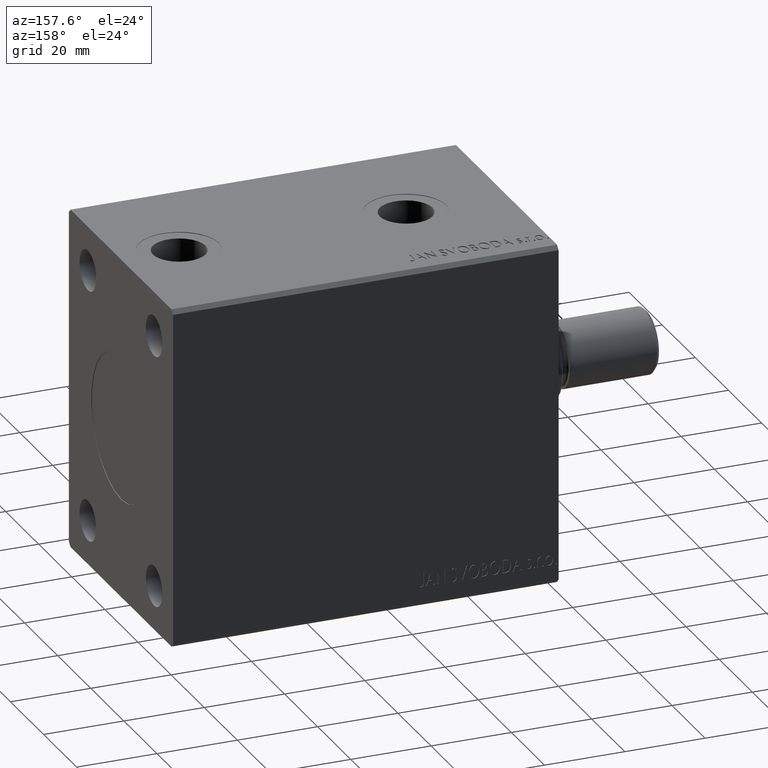
[diagram: clean part render]
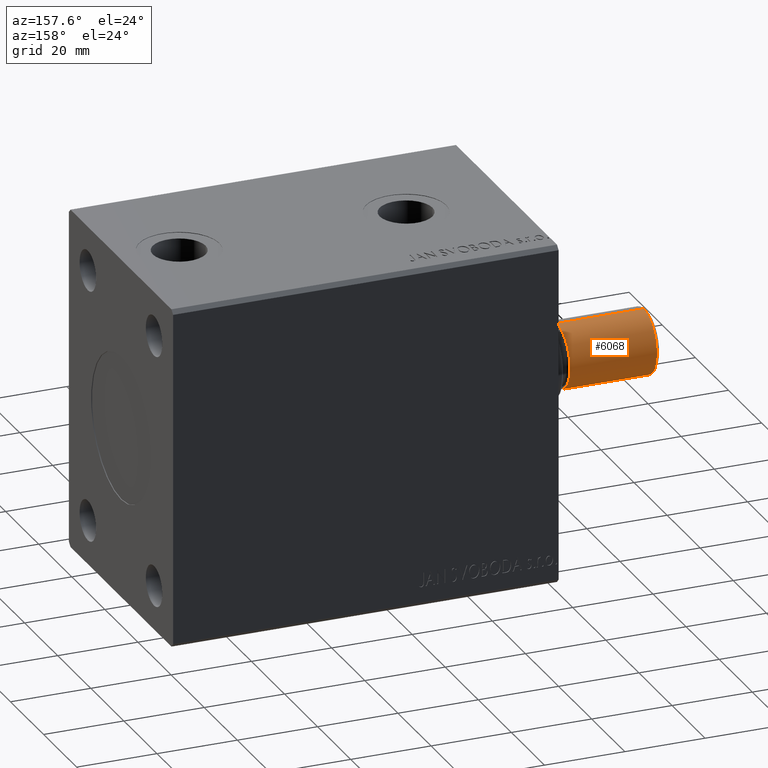
[diagram: same view with one face highlighted and labeled with its STEP entity id]
A machine part, auxiliary view. The second image highlights one B-rep face of the part: STEP entity #6068.
In plain terms, the highlighted cylindrical surface (edge-blend (fillet) strip) has radius 8 mm, axis along (-1, 0, 0).
Its self-contained STEP definition (entity closure, byte-faithful):
#2196 = CARTESIAN_POINT ( 'NONE',  ( 8.000000000000000000, 9.797174393178823685E-16, 22.50000000000000000 ) ) ;
#3369 = VERTEX_POINT ( 'NONE', #34357 ) ;
#4619 = CIRCLE ( 'NONE', #36196, 8.000000000000000000 ) ;
#6068 = ADVANCED_FACE ( 'NONE', ( #31720 ), #40545, .T. ) ;
#6344 = LINE ( 'NONE', #9263, #44154 ) ;
#6442 = CIRCLE ( 'NONE', #25096, 8.000000000000000000 ) ;
#6613 = DIRECTION ( 'NONE',  ( -1.000000000000000000, 0.000000000000000000, 0.000000000000000000 ) ) ;
#8069 = DIRECTION ( 'NONE',  ( 0.000000000000000000, 0.000000000000000000, 1.000000000000000000 ) ) ;
#8152 = EDGE_CURVE ( 'NONE', #35764, #24851, #6442, .T. ) ;
#9263 = CARTESIAN_POINT ( 'NONE',  ( -8.000000000000000000, 0.000000000000000000, 22.50000000000000000 ) ) ;
#9878 = CARTESIAN_POINT ( 'NONE',  ( 0.000000000000000000, 0.000000000000000000, 0.8000000000000055955 ) ) ;
#10244 = CARTESIAN_POINT ( 'NONE',  ( -8.000000000000000000, 0.000000000000000000, 22.50000000000000000 ) ) ;
#12327 = EDGE_CURVE ( 'NONE', #35764, #19407, #22876, .T. ) ;
#19256 = AXIS2_PLACEMENT_3D ( 'NONE', #37183, #23692, #6613 ) ;
#19407 = VERTEX_POINT ( 'NONE', #31261 ) ;
#20914 = DIRECTION ( 'NONE',  ( 1.000000000000000000, 0.000000000000000000, 0.000000000000000000 ) ) ;
#22267 = EDGE_LOOP ( 'NONE', ( #43315, #24741, #28617, #26966 ) ) ;
#22876 = LINE ( 'NONE', #2196, #38102 ) ;
#23692 = DIRECTION ( 'NONE',  ( -0.000000000000000000, -0.000000000000000000, -1.000000000000000000 ) ) ;
#24741 = ORIENTED_EDGE ( 'NONE', *, *, #12327, .T. ) ;
#24851 = VERTEX_POINT ( 'NONE', #10244 ) ;
#25096 = AXIS2_PLACEMENT_3D ( 'NONE', #34854, #8069, #20914 ) ;
#26512 = DIRECTION ( 'NONE',  ( 1.000000000000000000, 0.000000000000000000, 0.000000000000000000 ) ) ;
#26966 = ORIENTED_EDGE ( 'NONE', *, *, #41412, .F. ) ;
#27333 = CARTESIAN_POINT ( 'NONE',  ( 8.000000000000000000, 9.797174393178823685E-16, 22.50000000000000000 ) ) ;
#28617 = ORIENTED_EDGE ( 'NONE', *, *, #41659, .T. ) ;
#30523 = DIRECTION ( 'NONE',  ( -0.000000000000000000, -0.000000000000000000, -1.000000000000000000 ) ) ;
#31261 = CARTESIAN_POINT ( 'NONE',  ( 8.000000000000000000, 9.797174393178823685E-16, 0.8000000000000055955 ) ) ;
#31720 = FACE_OUTER_BOUND ( 'NONE', #22267, .T. ) ;
#34357 = CARTESIAN_POINT ( 'NONE',  ( -8.000000000000000000, 0.000000000000000000, 0.8000000000000055955 ) ) ;
#34854 = CARTESIAN_POINT ( 'NONE',  ( 0.000000000000000000, 0.000000000000000000, 22.50000000000000000 ) ) ;
#35764 = VERTEX_POINT ( 'NONE', #27333 ) ;
#36196 = AXIS2_PLACEMENT_3D ( 'NONE', #9878, #36850, #26512 ) ;
#36850 = DIRECTION ( 'NONE',  ( -0.000000000000000000, -0.000000000000000000, 1.000000000000000000 ) ) ;
#37183 = CARTESIAN_POINT ( 'NONE',  ( 0.000000000000000000, 0.000000000000000000, 22.50000000000000000 ) ) ;
#38102 = VECTOR ( 'NONE', #30523, 1000.000000000000000 ) ;
#40545 = CYLINDRICAL_SURFACE ( 'NONE', #19256, 8.000000000000000000 ) ;
#41412 = EDGE_CURVE ( 'NONE', #24851, #3369, #6344, .T. ) ;
#41659 = EDGE_CURVE ( 'NONE', #19407, #3369, #4619, .T. ) ;
#43315 = ORIENTED_EDGE ( 'NONE', *, *, #8152, .F. ) ;
#43642 = DIRECTION ( 'NONE',  ( -0.000000000000000000, -0.000000000000000000, -1.000000000000000000 ) ) ;
#44154 = VECTOR ( 'NONE', #43642, 1000.000000000000000 ) ;